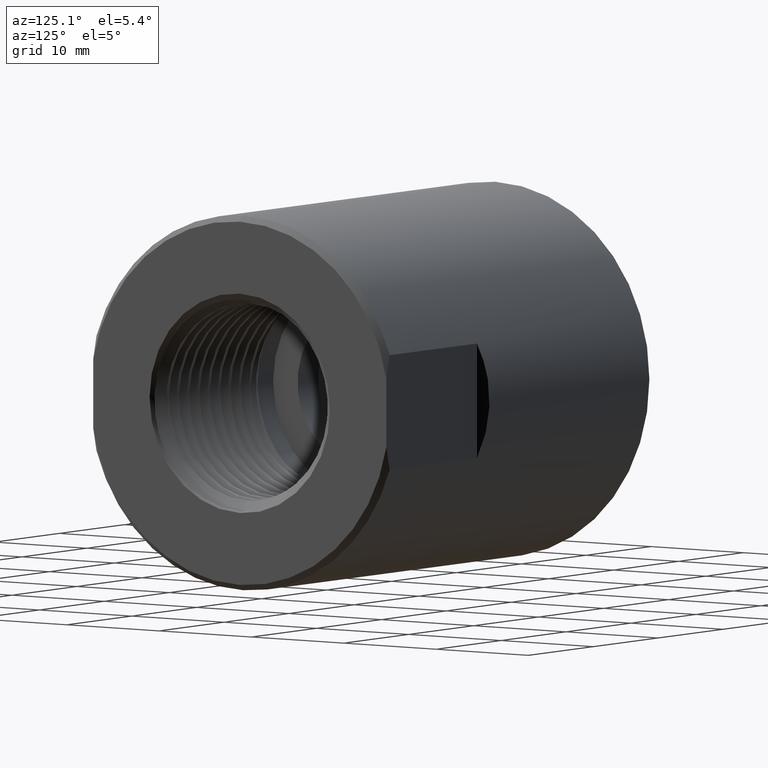
[diagram: clean part render]
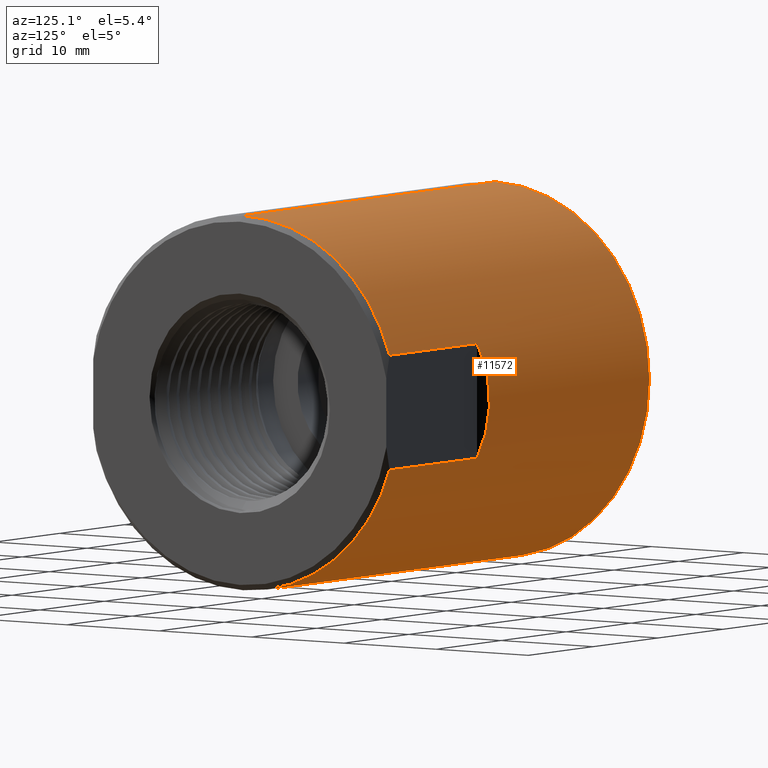
[diagram: same view with one face highlighted and labeled with its STEP entity id]
A machine part, auxiliary view. The second image highlights one B-rep face of the part: STEP entity #11572.
In plain terms, the highlighted cylindrical surface (partial cylindrical patch) has radius 16.67 mm, axis along (-1, -0, -0).
Its self-contained STEP definition (entity closure, byte-faithful):
#110 = ORIENTED_EDGE ( 'NONE', *, *, #10545, .F. ) ;
#129 = VECTOR ( 'NONE', #2108, 39.37007874015748143 ) ;
#261 = EDGE_CURVE ( 'NONE', #7868, #3710, #865, .T. ) ;
#532 = CARTESIAN_POINT ( 'NONE',  ( -0.2384999999999999898, 8.037356942804079914E-17, -0.6562999999999999945 ) ) ;
#865 = LINE ( 'NONE', #3658, #875 ) ;
#875 = VECTOR ( 'NONE', #5317, 39.37007874015748143 ) ;
#1028 = CARTESIAN_POINT ( 'NONE',  ( 1.292499999999999982, 0.0000000000000000000, 0.0000000000000000000 ) ) ;
#1207 = DIRECTION ( 'NONE',  ( 0.0000000000000000000, 0.0000000000000000000, 1.000000000000000000 ) ) ;
#1852 = CIRCLE ( 'NONE', #2229, 0.6562999999999999945 ) ;
#1863 = LINE ( 'NONE', #2745, #3381 ) ;
#1983 = DIRECTION ( 'NONE',  ( 0.0000000000000000000, 0.0000000000000000000, 1.000000000000000000 ) ) ;
#2108 = DIRECTION ( 'NONE',  ( -1.000000000000000000, -0.0000000000000000000, -0.0000000000000000000 ) ) ;
#2229 = AXIS2_PLACEMENT_3D ( 'NONE', #1028, #8372, #1207 ) ;
#2386 = VERTEX_POINT ( 'NONE', #532 ) ;
#2519 = LINE ( 'NONE', #5363, #10790 ) ;
#2679 = CARTESIAN_POINT ( 'NONE',  ( 0.0000000000000000000, 0.0000000000000000000, 0.0000000000000000000 ) ) ;
#2745 = CARTESIAN_POINT ( 'NONE',  ( 0.0000000000000000000, 0.0000000000000000000, 0.6562999999999999945 ) ) ;
#2881 = CARTESIAN_POINT ( 'NONE',  ( 0.7201529198803714449, 0.6671470801196286438, -0.06917498707901616195 ) ) ;
#2884 = ORIENTED_EDGE ( 'NONE', *, *, #4999, .F. ) ;
#2997 = CARTESIAN_POINT ( 'NONE',  ( 0.0000000000000000000, 8.037356942804079914E-17, -0.6562999999999999945 ) ) ;
#3381 = VECTOR ( 'NONE', #4458, 39.37007874015748143 ) ;
#3517 = CARTESIAN_POINT ( 'NONE',  ( 1.292499999999999982, 8.037356942804079914E-17, -0.6562999999999999945 ) ) ;
#3592 = EDGE_LOOP ( 'NONE', ( #4361, #5101, #7160, #2884, #5079, #5250, #110, #8310 ) ) ;
#3658 = CARTESIAN_POINT ( 'NONE',  ( 0.0000000000000000000, 0.6248000000000000220, -0.2008846684045352826 ) ) ;
#3710 = VERTEX_POINT ( 'NONE', #7939 ) ;
#3883 = CARTESIAN_POINT ( 'NONE',  ( 0.7624999999999998446, 0.6248000000000000220, 0.2008846684045353381 ) ) ;
#4099 = DIRECTION ( 'NONE',  ( 0.0000000000000000000, 0.0000000000000000000, 1.000000000000000000 ) ) ;
#4361 = ORIENTED_EDGE ( 'NONE', *, *, #7194, .T. ) ;
#4392 = CYLINDRICAL_SURFACE ( 'NONE', #8375, 0.6562999999999999945 ) ;
#4458 = DIRECTION ( 'NONE',  ( -1.000000000000000000, -0.0000000000000000000, -0.0000000000000000000 ) ) ;
#4468 = DIRECTION ( 'NONE',  ( 1.000000000000000000, 0.0000000000000000000, 0.0000000000000000000 ) ) ;
#4999 = EDGE_CURVE ( 'NONE', #11174, #11407, #1863, .T. ) ;
#5079 = ORIENTED_EDGE ( 'NONE', *, *, #8737, .T. ) ;
#5101 = ORIENTED_EDGE ( 'NONE', *, *, #7251, .T. ) ;
#5250 = ORIENTED_EDGE ( 'NONE', *, *, #7186, .F. ) ;
#5317 = DIRECTION ( 'NONE',  ( -1.000000000000000000, -0.0000000000000000000, -0.0000000000000000000 ) ) ;
#5363 = CARTESIAN_POINT ( 'NONE',  ( 0.0000000000000000000, 0.6248000000000000220, 0.2008846684045352826 ) ) ;
#5892 = CARTESIAN_POINT ( 'NONE',  ( 1.292499999999999982, 0.0000000000000000000, 0.0000000000000000000 ) ) ;
#6015 = AXIS2_PLACEMENT_3D ( 'NONE', #9142, #6383, #1983 ) ;
#6154 = CARTESIAN_POINT ( 'NONE',  ( -0.2384999999999999898, 0.0000000000000000000, 0.6562999999999999945 ) ) ;
#6260 = VERTEX_POINT ( 'NONE', #10203 ) ;
#6271 = VERTEX_POINT ( 'NONE', #6551 ) ;
#6309 = FACE_OUTER_BOUND ( 'NONE', #3592, .T. ) ;
#6333 = VERTEX_POINT ( 'NONE', #3517 ) ;
#6382 = EDGE_CURVE ( 'NONE', #11407, #2386, #6774, .T. ) ;
#6383 = DIRECTION ( 'NONE',  ( -1.000000000000000000, -0.0000000000000000000, -0.0000000000000000000 ) ) ;
#6551 = CARTESIAN_POINT ( 'NONE',  ( 1.292499999999999982, 0.6248000000000000220, 0.2008846684045352271 ) ) ;
#6774 = CIRCLE ( 'NONE', #6015, 0.6562999999999999945 ) ;
#7160 = ORIENTED_EDGE ( 'NONE', *, *, #6382, .F. ) ;
#7186 = EDGE_CURVE ( 'NONE', #6260, #6271, #2519, .T. ) ;
#7194 = EDGE_CURVE ( 'NONE', #7868, #6333, #1852, .T. ) ;
#7251 = EDGE_CURVE ( 'NONE', #6333, #2386, #10213, .T. ) ;
#7733 =( BOUNDED_CURVE ( )  B_SPLINE_CURVE ( 3, ( #9666, #2881, #8382, #3883 ),
 .UNSPECIFIED., .F., .T. ) 
 B_SPLINE_CURVE_WITH_KNOTS ( ( 4, 4 ),
 ( 5.972105652319316782, 6.594264962039855682 ),
 .UNSPECIFIED. ) 
 CURVE ( )  GEOMETRIC_REPRESENTATION_ITEM ( )  RATIONAL_B_SPLINE_CURVE ( ( 1.000000000000000000, 0.9680024379094925857, 0.9680024379094925857, 1.000000000000000000 ) ) 
 REPRESENTATION_ITEM ( '' )  );
#7868 = VERTEX_POINT ( 'NONE', #10126 ) ;
#7939 = CARTESIAN_POINT ( 'NONE',  ( 0.7624999999999998446, 0.6248000000000000220, -0.2008846684045352826 ) ) ;
#8310 = ORIENTED_EDGE ( 'NONE', *, *, #261, .F. ) ;
#8338 = AXIS2_PLACEMENT_3D ( 'NONE', #5892, #9659, #4099 ) ;
#8372 = DIRECTION ( 'NONE',  ( -1.000000000000000000, -0.0000000000000000000, -0.0000000000000000000 ) ) ;
#8375 = AXIS2_PLACEMENT_3D ( 'NONE', #2679, #9956, #9063 ) ;
#8382 = CARTESIAN_POINT ( 'NONE',  ( 0.7201529198803715559, 0.6671470801196286438, 0.06917498707901596766 ) ) ;
#8737 = EDGE_CURVE ( 'NONE', #11174, #6271, #9487, .T. ) ;
#9063 = DIRECTION ( 'NONE',  ( 0.0000000000000000000, 0.0000000000000000000, 1.000000000000000000 ) ) ;
#9142 = CARTESIAN_POINT ( 'NONE',  ( -0.2384999999999999898, 0.0000000000000000000, 0.0000000000000000000 ) ) ;
#9487 = CIRCLE ( 'NONE', #8338, 0.6562999999999999945 ) ;
#9659 = DIRECTION ( 'NONE',  ( -1.000000000000000000, -0.0000000000000000000, -0.0000000000000000000 ) ) ;
#9666 = CARTESIAN_POINT ( 'NONE',  ( 0.7624999999999998446, 0.6248000000000000220, -0.2008846684045352826 ) ) ;
#9956 = DIRECTION ( 'NONE',  ( -1.000000000000000000, -0.0000000000000000000, -0.0000000000000000000 ) ) ;
#10126 = CARTESIAN_POINT ( 'NONE',  ( 1.292499999999999982, 0.6248000000000000220, -0.2008846684045352826 ) ) ;
#10173 = CARTESIAN_POINT ( 'NONE',  ( 1.292499999999999982, 0.0000000000000000000, 0.6562999999999999945 ) ) ;
#10203 = CARTESIAN_POINT ( 'NONE',  ( 0.7624999999999998446, 0.6248000000000000220, 0.2008846684045353381 ) ) ;
#10213 = LINE ( 'NONE', #2997, #129 ) ;
#10545 = EDGE_CURVE ( 'NONE', #3710, #6260, #7733, .T. ) ;
#10790 = VECTOR ( 'NONE', #4468, 39.37007874015748143 ) ;
#11174 = VERTEX_POINT ( 'NONE', #10173 ) ;
#11407 = VERTEX_POINT ( 'NONE', #6154 ) ;
#11572 = ADVANCED_FACE ( 'NONE', ( #6309 ), #4392, .T. ) ;